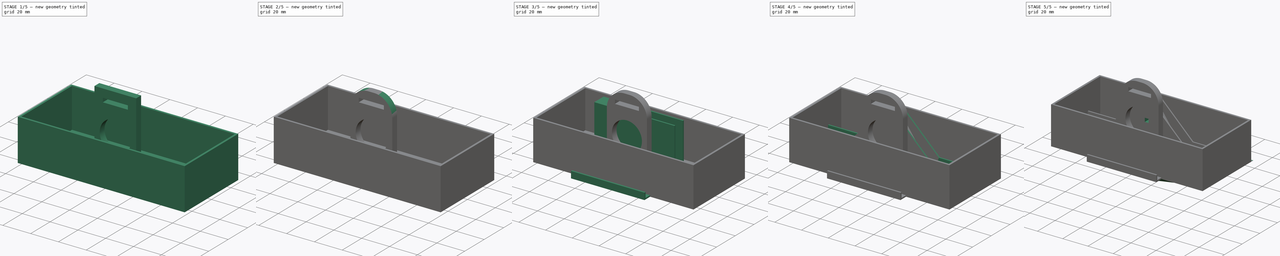
[diagram: build sequence overview — one tinted view per stage of 5, left to right]
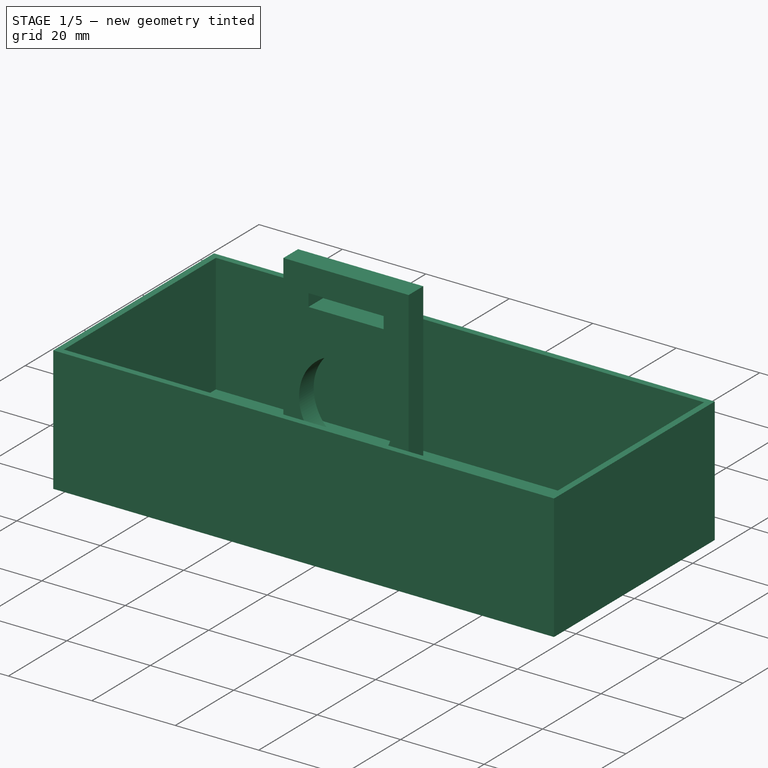
[diagram: stage 1 of 5 — iso view after this stage's code; geometry added in this stage tinted green]
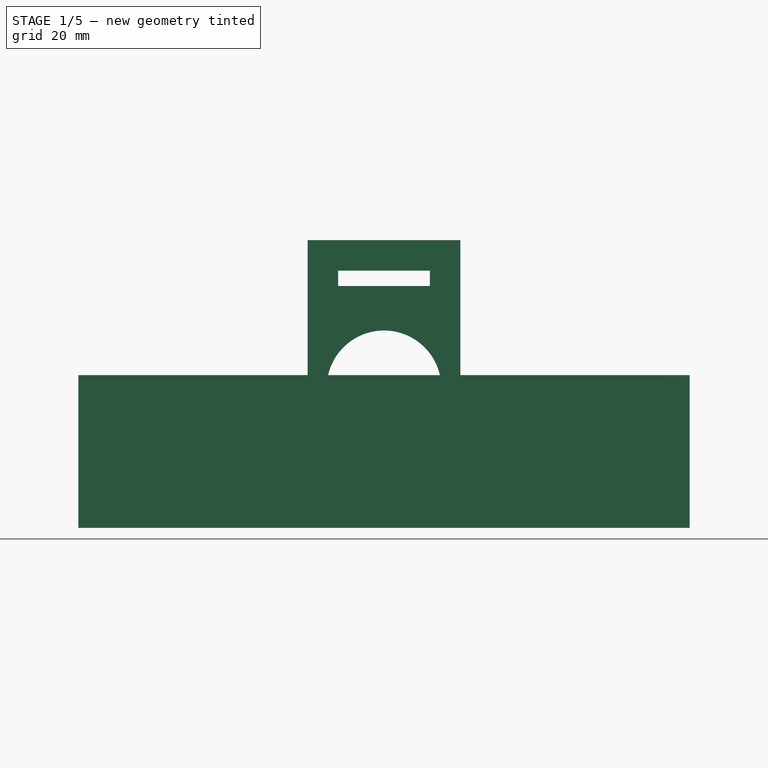
[diagram: stage 1 of 5 — front view after this stage's code; geometry added in this stage tinted green]
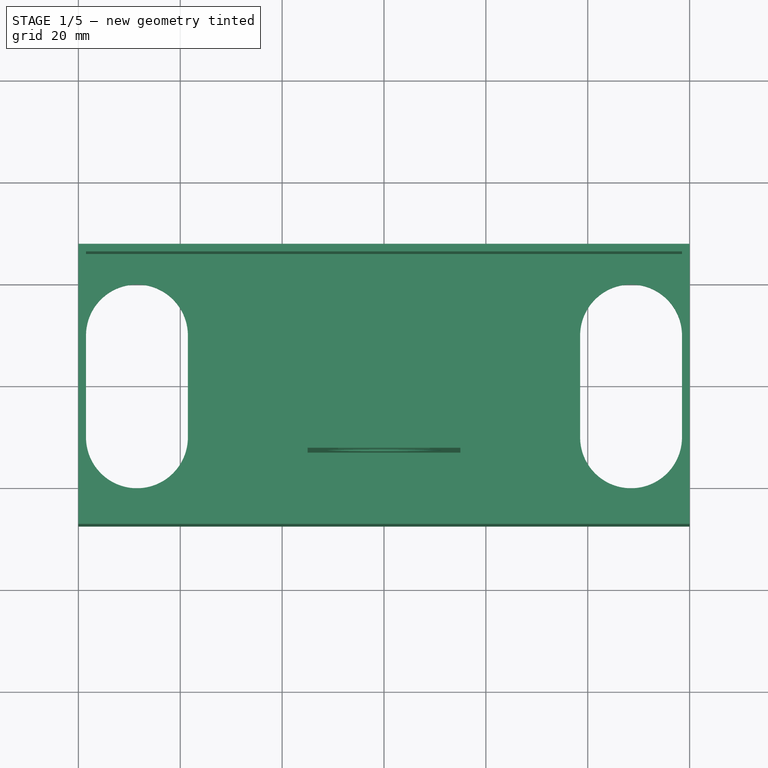
[diagram: stage 1 of 5 — top view after this stage's code; geometry added in this stage tinted green]
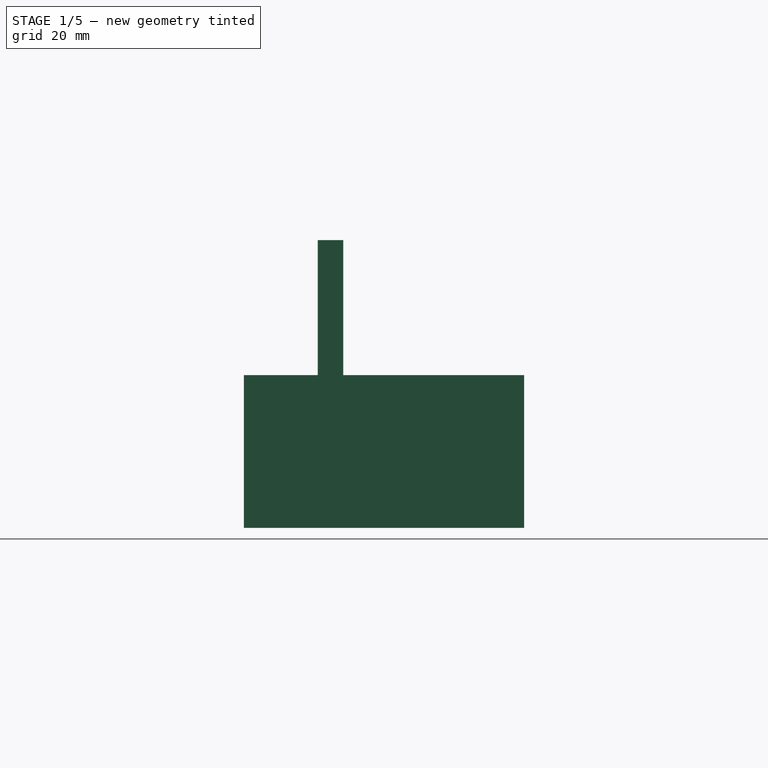
[diagram: stage 1 of 5 — right view after this stage's code; geometry added in this stage tinted green]
FCSTD DOCUMENT  (FreeCAD 0.19R24291 (Git))
Label: rain-o-meter
License: Creative Commons Attribution
LicenseURL: http://creativecommons.org/licenses/by/4.0/
objects: Sketcher::SketchObject×31, PartDesign::Pocket×13, PartDesign::Pad×10, PartDesign::SubtractiveLoft×3, PartDesign::Body×3, PartDesign::Plane×1, PartDesign::AdditiveLoft×1, PartDesign::Fillet×1
note: 91 computed .brp shape members not serialized (recipe doc carries the construction recipe); baked Part::Feature solids carry a one-line shape summary decoded from their .brp

FEATURE [PartDesign::Body] Body001  label="Deckel"
  Group = -> [Sketch005,DatumPlane,Sketch006,AdditiveLoft,Sketch007,Sketch008,SubtractiveLoft]
  Origin = -> Origin001
  Placement = pos=(0,0,23) rot=(0,0,1;0rad)
  Tip = -> SubtractiveLoft
FEATURE [Sketcher::SketchObject] Sketch009
  FullyConstrained = true
  MapMode = 5
  Support = -> [XY_Plane002]
  sketch-geometry (4):
    g0: LineSegment StartX=-60 StartY=27.5 StartZ=0 EndX=60 EndY=27.5 EndZ=0
    g1: LineSegment StartX=60 StartY=27.5 StartZ=0 EndX=60 EndY=-27.5 EndZ=0
    g2: LineSegment StartX=60 StartY=-27.5 StartZ=0 EndX=-60 EndY=-27.5 EndZ=0
    g3: LineSegment StartX=-60 StartY=-27.5 StartZ=0 EndX=-60 EndY=27.5 EndZ=0
  constraints (10):
    c: Coincident(g0,g1)
    c: Coincident(g1,g2)
    c: Coincident(g2,g3)
    c: Coincident(g3,g0)
    c: Horizontal(g0)
    c: Vertical(g1)
    c: Symmetric(g2,g1,g-2)
    c: Symmetric(g2,g0,g-1)
    c: Distance(g0) = 120
    c: Distance(g3) = 55
FEATURE [PartDesign::Pad] Pad004
  Direction = (1,1,1)
  Length = 30
  Length2 = 100
  Profile = -> Sketch009
  Type = 0
FEATURE [Sketcher::SketchObject] Sketch010
  ExternalGeometry = -> [Pad004]
  FullyConstrained = true
  MapMode = 5
  Placement = pos=(0,0,30) rot=(0,0,1;0rad)
  Support = -> [Pad004]
  sketch-geometry (4):
    g0: LineSegment StartX=-58.5 StartY=26 StartZ=0 EndX=58.5 EndY=26 EndZ=0
    g1: LineSegment StartX=58.5 StartY=26 StartZ=0 EndX=58.5 EndY=-26 EndZ=0
    g2: LineSegment StartX=58.5 StartY=-26 StartZ=0 EndX=-58.5 EndY=-26 EndZ=0
    g3: LineSegment StartX=-58.5 StartY=-26 StartZ=0 EndX=-58.5 EndY=26 EndZ=0
  constraints (12):
    c: Coincident(g0,g1)
    c: Coincident(g1,g2)
    c: Coincident(g2,g3)
    c: Coincident(g3,g0)
    c: Horizontal(g0)
    c: Horizontal(g2)
    c: Vertical(g1)
    c: Vertical(g3)
    c: DistanceX(g-3,g0) = 1.5
    c: DistanceY(g0,g-3) = 1.5
    c: DistanceY(g-4,g1) = 1.5
    c: DistanceX(g1,g-4) = 1.5
FEATURE [PartDesign::Pocket] Pocket001
  BaseFeature = -> Pad004
  Length = 5
  Length2 = 100
  Offset = -1.5
  Profile = -> Sketch010
  Type = 2
FEATURE [Sketcher::SketchObject] Sketch011
  ExternalGeometry = -> [Pocket001]
  FullyConstrained = true
  MapMode = 5
  Placement = pos=(0,0,1.5) rot=(0,0,1;0rad)
  Support = -> [Pocket001]
  sketch-geometry (8):
    g0: ArcOfCircle CenterX=-48.5 CenterY=10 CenterZ=0 NormalX=0 NormalY=0 NormalZ=1 AngleXU=0 Radius=10 StartAngle=0 EndAngle=3.14159
    g1: ArcOfCircle CenterX=-48.5 CenterY=-10 CenterZ=0 NormalX=0 NormalY=0 NormalZ=1 AngleXU=0 Radius=10 StartAngle=3.14159 EndAngle=6.28319
    g2: LineSegment StartX=-58.5 StartY=10 StartZ=0 EndX=-58.5 EndY=-10 EndZ=0
    g3: LineSegment StartX=-38.5 StartY=10 StartZ=0 EndX=-38.5 EndY=-10 EndZ=0
    g4: ArcOfCircle CenterX=48.5 CenterY=10 CenterZ=0 NormalX=0 NormalY=0 NormalZ=1 AngleXU=0 Radius=10 StartAngle=1e-16 EndAngle=3.14159
    g5: ArcOfCircle CenterX=48.5 CenterY=-10 CenterZ=0 NormalX=0 NormalY=0 NormalZ=1 AngleXU=0 Radius=10 StartAngle=3.14159 EndAngle=6.28319
    g6: LineSegment StartX=38.5 StartY=10 StartZ=0 EndX=38.5 EndY=-10 EndZ=0
    g7: LineSegment StartX=58.5 StartY=10 StartZ=0 EndX=58.5 EndY=-10 EndZ=0
  constraints (18):
    c: Tangent(g0,g3) = 1.5708
    c: Tangent(g0,g2) = -1.5708
    c: Tangent(g2,g1) = -1.5708
    c: Tangent(g3,g1) = 1.5708
    c: Vertical(g2)
    c: PointOnObject(g0,g-3)
    c: Symmetric(g1,g0,g-1)
    c: DistanceX(g1,g1) = 20
    c: DistanceY(g1,g0) = 20
    c: Tangent(g4,g7) = 1.5708
    c: Tangent(g4,g6) = -1.5708
    c: Tangent(g6,g5) = -1.5708
    c: Tangent(g7,g5) = 1.5708
    c: Equal(g4,g5)
    c: PointOnObject(g4,g-4)
    c: Symmetric(g4,g5,g-1)
    c: Distance(g4,g5) = 20
    c: Distance(g4,g4) = 20
FEATURE [PartDesign::Pocket] Pocket002
  BaseFeature = -> Pocket001
  Length = 5
  Length2 = 100
  Profile = -> Sketch011
  Type = 0
FEATURE [Sketcher::SketchObject] Sketch012
  FullyConstrained = true
  MapMode = 5
  Placement = pos=(0,0,1.5) rot=(0,0,1;0rad)
  Support = -> [Pocket002]
  sketch-geometry (4):
    g0: LineSegment StartX=-15 StartY=-8 StartZ=0 EndX=15 EndY=-8 EndZ=0
    g1: LineSegment StartX=15 StartY=-8 StartZ=0 EndX=15 EndY=-13 EndZ=0
    g2: LineSegment StartX=15 StartY=-13 StartZ=0 EndX=-15 EndY=-13 EndZ=0
    g3: LineSegment StartX=-15 StartY=-13 StartZ=0 EndX=-15 EndY=-8 EndZ=0
  constraints (11):
    c: Coincident(g0,g1)
    c: Coincident(g1,g2)
    c: Coincident(g2,g3)
    c: Coincident(g3,g0)
    c: Horizontal(g0)
    c: Vertical(g1)
    c: Vertical(g3)
    c: Symmetric(g2,g1,g-2)
    c: Distance(g3) = 5
    c: Distance(g2) = 30
    c: DistanceY(g0,g-1) = 8
FEATURE [PartDesign::Pad] Pad005  label="Halter"
  BaseFeature = -> Pocket002
  Direction = (1,1,1)
  Length = 55
  Length2 = 100
  Profile = -> Sketch012
  Type = 0
FEATURE [Sketcher::SketchObject] Sketch013
  FullyConstrained = false
  MapMode = 5
  Placement = pos=(0,-13,0) rot=(1,0,0;1.5708rad)
  sketch-geometry (1):
    g0: Circle CenterX=0 CenterY=27.5 CenterZ=0 NormalX=0 NormalY=0 NormalZ=1 AngleXU=0 Radius=11.25
  constraints (2):
    c: PointOnObject(g0,g-2)
    c: Diameter(g0) = 22.5
FEATURE [PartDesign::Pocket] Pocket003  label="Loch fuer Kugellager"
  BaseFeature = -> Pad005
  Length = 5
  Length2 = 100
  Profile = -> Sketch013
  Type = 0
FEATURE [PartDesign::Body] Body  label="Wippe"
  Group = -> [Sketch,Pad,Sketch014,Sketch015,SubtractiveLoft001,Sketch016,Sketch017,SubtractiveLoft002,Sketch018,Pocket,Sketch019,Pad006,Sketch020,Pocket004,Sketch021,Pocket005,Sketch022,Pad007,Sketch023,Pad008,Sketch024,Pocket006,Sketch025,Pocket007]
  Origin = -> Origin
  Tip = -> Pocket007
FEATURE [Sketcher::SketchObject] Sketch026
  ExternalGeometry = -> [Pocket003]
  FullyConstrained = true
  MapMode = 5
  Placement = pos=(0,-13,0) rot=(1,0,0;1.5708rad)
  Support = -> [Pocket003]
  sketch-geometry (4):
    g0: LineSegment StartX=-9 StartY=50.5 StartZ=0 EndX=9 EndY=50.5 EndZ=0
    g1: LineSegment StartX=9 StartY=50.5 StartZ=0 EndX=9 EndY=47.5 EndZ=0
    g2: LineSegment StartX=9 StartY=47.5 StartZ=0 EndX=-9 EndY=47.5 EndZ=0
    g3: LineSegment StartX=-9 StartY=47.5 StartZ=0 EndX=-9 EndY=50.5 EndZ=0
  constraints (11):
    c: Coincident(g0,g1)
    c: Coincident(g1,g2)
    c: Coincident(g2,g3)
    c: Coincident(g3,g0)
    c: Horizontal(g2)
    c: Vertical(g1)
    c: Vertical(g3)
    c: Distance(g0) = 18
    c: Distance(g3) = 3
    c: Symmetric(g0,g0,g-2)
    c: DistanceY(g-3,g1) = 20
FEATURE [PartDesign::Pocket] Pocket008
  BaseFeature = -> Pocket003
  Length = 5
  Length2 = 100
  Profile = -> Sketch026
  Type = 0
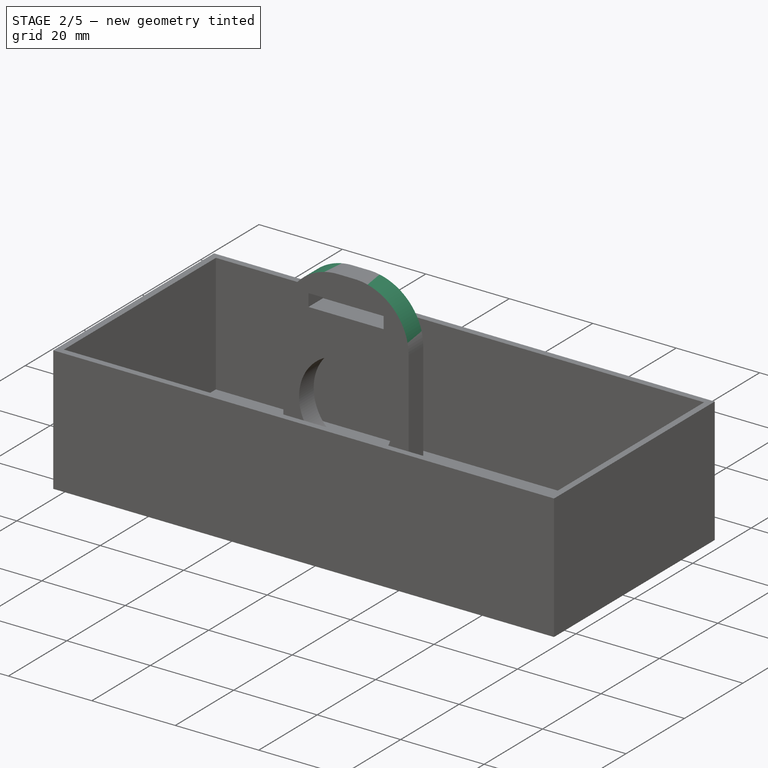
[diagram: stage 2 of 5 — iso view after this stage's code; geometry added in this stage tinted green]
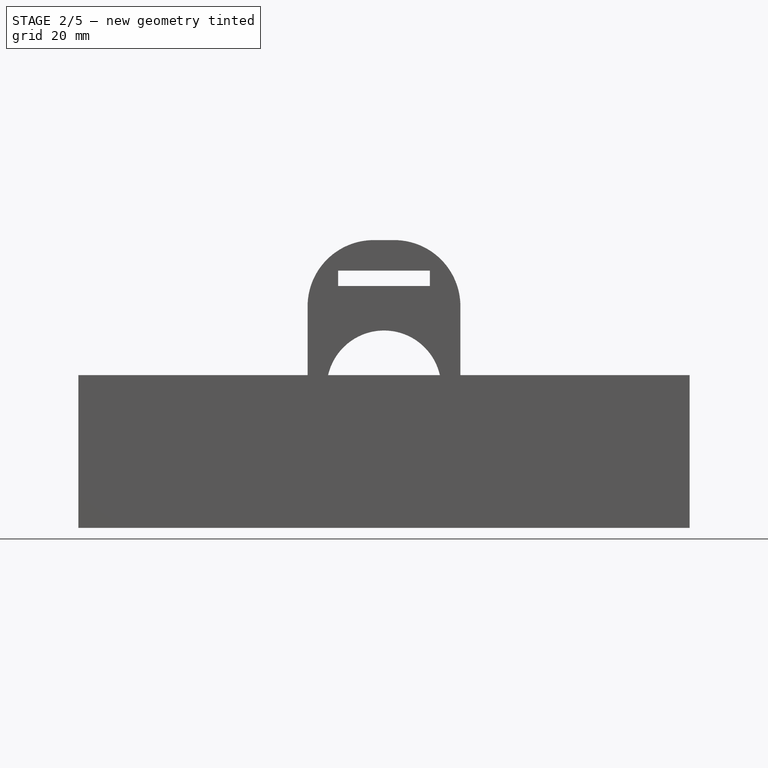
[diagram: stage 2 of 5 — front view after this stage's code; geometry added in this stage tinted green]
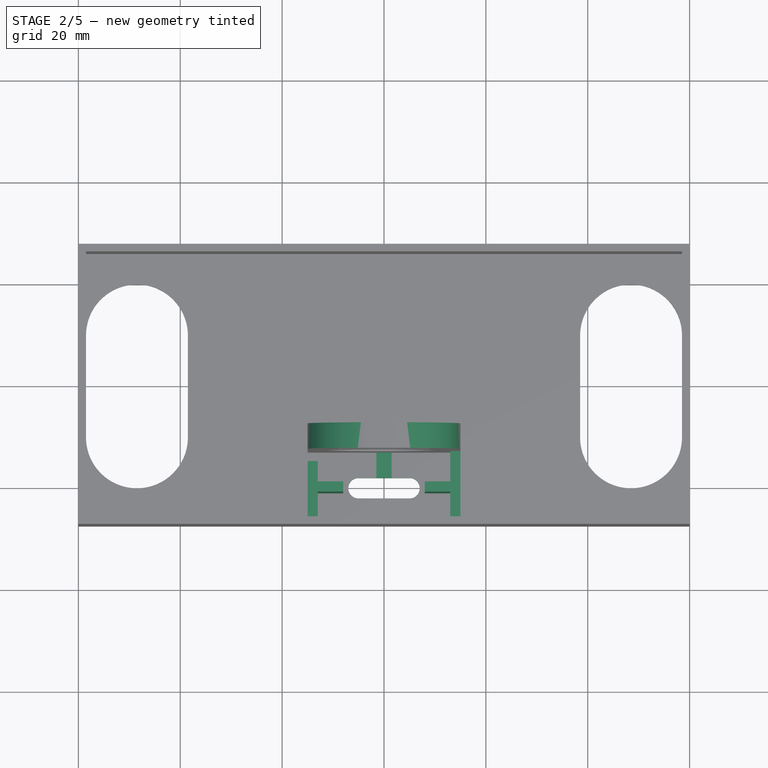
[diagram: stage 2 of 5 — top view after this stage's code; geometry added in this stage tinted green]
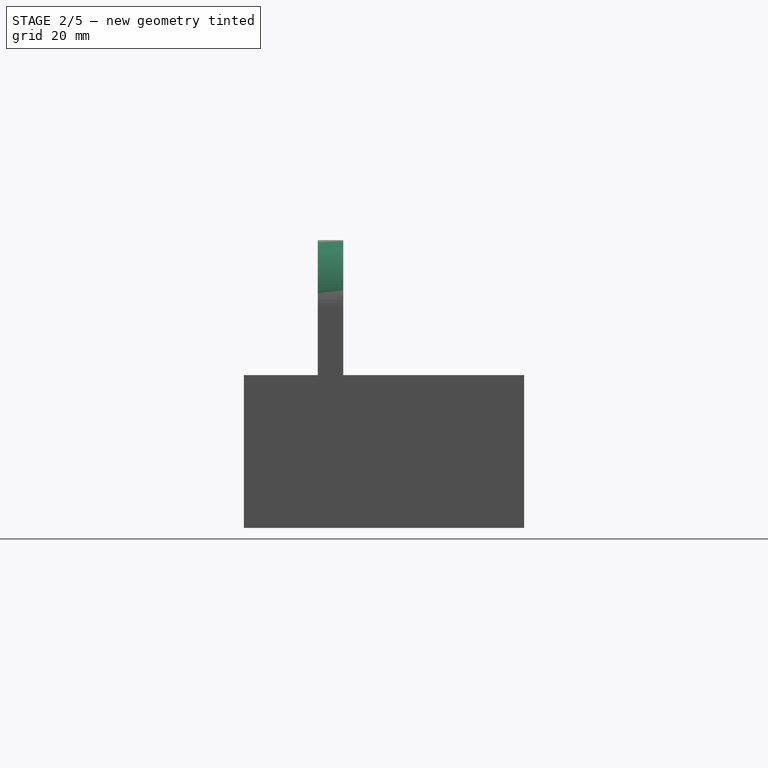
[diagram: stage 2 of 5 — right view after this stage's code; geometry added in this stage tinted green]
FEATURE [PartDesign::Fillet] Fillet
  Base = -> Pocket008 [Edge64,Edge72]
  BaseFeature = -> Pocket008
  Radius = 13
  SupportTransform = false
FEATURE [Sketcher::SketchObject] Sketch027
  ExternalGeometry = -> [Fillet]
  FullyConstrained = true
  MapMode = 5
  Placement = pos=(0,0,1.5) rot=(0,0,1;0rad)
  Support = -> [Fillet]
  sketch-geometry (16):
    g0: LineSegment StartX=-13 StartY=-15 StartZ=0 EndX=-13 EndY=-19 EndZ=0
    g1: LineSegment StartX=-15 StartY=-26 StartZ=0 EndX=-15 EndY=-15 EndZ=0
    g2: LineSegment StartX=-13 StartY=-19 StartZ=0 EndX=-8 EndY=-19 EndZ=0
    g3: LineSegment StartX=-8 StartY=-19 StartZ=0 EndX=-8 EndY=-21 EndZ=0
    g4: LineSegment StartX=-8 StartY=-21 StartZ=0 EndX=-13 EndY=-21 EndZ=0
    g5: LineSegment StartX=15 StartY=-13 StartZ=0 EndX=15 EndY=-26 EndZ=0
    g6: LineSegment StartX=8 StartY=-21 StartZ=0 EndX=8 EndY=-19 EndZ=0
    g7: LineSegment StartX=8 StartY=-19 StartZ=0 EndX=13 EndY=-19 EndZ=0
    g8: LineSegment StartX=13 StartY=-19 StartZ=0 EndX=13 EndY=-13 EndZ=0
    g9: LineSegment StartX=13 StartY=-13 StartZ=0 EndX=15 EndY=-13 EndZ=0
    g10: LineSegment StartX=-13 StartY=-21 StartZ=0 EndX=-13 EndY=-26 EndZ=0
    g11: LineSegment StartX=-13 StartY=-26 StartZ=0 EndX=-15 EndY=-26 EndZ=0
    g12: LineSegment StartX=8 StartY=-21 StartZ=0 EndX=13 EndY=-21 EndZ=0
    g13: LineSegment StartX=13 StartY=-21 StartZ=0 EndX=13 EndY=-26 EndZ=0
    g14: LineSegment StartX=13 StartY=-26 StartZ=0 EndX=15 EndY=-26 EndZ=0
    g15: LineSegment StartX=-15 StartY=-15 StartZ=0 EndX=-13 EndY=-15 EndZ=0
  constraints (47):
    c: Vertical(g0)
    c: Vertical(g1)
    c: Vertical(g0,g4)
    c: Coincident(g0,g2)
    c: Horizontal(g2)
    c: Coincident(g2,g3)
    c: Vertical(g3)
    c: Coincident(g3,g4)
    c: Horizontal(g4)
    c: Distance(g2) = 5
    c: Coincident(g-3,g5)
    c: Vertical(g5)
    c: Vertical(g6)
    c: Coincident(g6,g7)
    c: Horizontal(g7)
    c: PointOnObject(g8,g-3)
    c: Vertical(g8)
    c: Coincident(g8,g9)
    c: Coincident(g9,g5)
    c: Distance(g8) = 6
    c: Distance(g9) = 2
    c: Distance(g7) = 5
    c: PointOnObject(g1,g-4)
    c: Coincident(g4,g10)
    c: PointOnObject(g10,g-4)
    c: Vertical(g10)
    c: Coincident(g10,g11)
    c: Coincident(g11,g1)
    c: Distance(g11) = 2
    c: Distance(g3) = 2
    c: Coincident(g6,g12)
    c: Horizontal(g12)
    c: Coincident(g12,g13)
    c: PointOnObject(g13,g-4)
    c: Vertical(g13)
    c: Coincident(g13,g14)
    c: PointOnObject(g14,g-4)
    c: Coincident(g5,g14)
    c: Distance(g6) = 2
    c: Distance(g14) = 2
    c: Horizontal(g2,g6)
    c: Vertical(g1,g-3)
    c: Coincident(g15,g1)
    c: Coincident(g15,g0)
    c: Horizontal(g15)
    c: DistanceY(g1,g-3) = 2
    c: Coincident(g8,g7)
FEATURE [PartDesign::Pad] Pad009  label="Platinenklammer"
  BaseFeature = -> Fillet
  Direction = (1,1,1)
  Length = 20
  Length2 = 100
  Profile = -> Sketch027
  Type = 0
FEATURE [Sketcher::SketchObject] Sketch028
  ExternalGeometry = -> [Pad009]
  FullyConstrained = true
  MapMode = 5
  Placement = pos=(0,0,1.5) rot=(0,0,1;0rad)
  Support = -> [Pad009]
  sketch-geometry (4):
    g0: LineSegment StartX=-1.5 StartY=-13 StartZ=0 EndX=1.5 EndY=-13 EndZ=0
    g1: LineSegment StartX=1.5 StartY=-13 StartZ=0 EndX=1.5 EndY=-18 EndZ=0
    g2: LineSegment StartX=1.5 StartY=-18 StartZ=0 EndX=-1.5 EndY=-18 EndZ=0
    g3: LineSegment StartX=-1.5 StartY=-18 StartZ=0 EndX=-1.5 EndY=-13 EndZ=0
  constraints (11):
    c: Coincident(g0,g1)
    c: Coincident(g1,g2)
    c: Coincident(g2,g3)
    c: Coincident(g3,g0)
    c: Horizontal(g0)
    c: Vertical(g1)
    c: Vertical(g3)
    c: PointOnObject(g0,g-3)
    c: Distance(g1) = 5
    c: Symmetric(g2,g1,g-2)
    c: Distance(g0) = 3
FEATURE [PartDesign::Pad] Pad010  label="Platinenpodest"
  BaseFeature = -> Pad009
  Direction = (1,1,1)
  Length = 2
  Length2 = 100
  Profile = -> Sketch028
  Type = 0
FEATURE [Sketcher::SketchObject] Sketch029
  ExternalGeometry = -> [Pad010]
  FullyConstrained = true
  MapMode = 5
  Placement = pos=(-13,0,0) rot=(0.57735,0.57735,0.57735;2.0944rad)
  Support = -> [Pad010]
  sketch-geometry (4):
    g0: ArcOfCircle CenterX=-4.75 CenterY=5.5 CenterZ=0 NormalX=0 NormalY=0 NormalZ=1 AngleXU=0 Radius=1.5 StartAngle=1.5708 EndAngle=4.71239
    g1: ArcOfCircle CenterX=4.75 CenterY=5.5 CenterZ=0 NormalX=0 NormalY=0 NormalZ=1 AngleXU=0 Radius=1.5 StartAngle=4.71239 EndAngle=7.85398
    g2: LineSegment StartX=-4.75 StartY=4 StartZ=0 EndX=4.75 EndY=4 EndZ=0
    g3: LineSegment StartX=-4.75 StartY=7 StartZ=0 EndX=4.75 EndY=7 EndZ=0
  constraints (9):
    c: Tangent(g0,g3) = 1.5708
    c: Tangent(g0,g2) = -1.5708
    c: Tangent(g2,g1) = -1.5708
    c: Tangent(g3,g1) = 1.5708
    c: Horizontal(g2)
    c: Symmetric(g1,g0,g-2)
    c: DistanceY(g1,g1) = 3
    c: Distance(g3) = 9.5
    c: DistanceY(g-3,g1) = 4
FEATURE [PartDesign::Pocket] Pocket009
  BaseFeature = -> Pad010
  Length = 5
  Length2 = 100
  Profile = -> Sketch029
  Type = 0
FEATURE [Sketcher::SketchObject] Sketch030
  ExternalGeometry = -> [Pocket009]
  FullyConstrained = true
  MapMode = 5
  Placement = pos=(0,0,1.5) rot=(0,0,1;0rad)
  Support = -> [Pocket009]
  sketch-geometry (4):
    g0: ArcOfCircle CenterX=-5 CenterY=-20 CenterZ=0 NormalX=0 NormalY=0 NormalZ=1 AngleXU=0 Radius=2 StartAngle=1.5708 EndAngle=4.71239
    g1: ArcOfCircle CenterX=5 CenterY=-20 CenterZ=0 NormalX=0 NormalY=0 NormalZ=1 AngleXU=0 Radius=2 StartAngle=4.71239 EndAngle=7.85398
    g2: LineSegment StartX=-5 StartY=-22 StartZ=0 EndX=5 EndY=-22 EndZ=0
    g3: LineSegment StartX=-5 StartY=-18 StartZ=0 EndX=5 EndY=-18 EndZ=0
  constraints (9):
    c: Tangent(g0,g3) = 1.5708
    c: Tangent(g0,g2) = -1.5708
    c: Tangent(g2,g1) = -1.5708
    c: Tangent(g3,g1) = 1.5708
    c: Equal(g0,g1)
    c: PointOnObject(g-3,g3)
    c: Symmetric(g0,g1,g-2)
    c: Distance(g2) = 10
    c: DistanceY(g1,g1) = 4
FEATURE [PartDesign::Pocket] Pocket010
  BaseFeature = -> Pocket009
  Length = 5
  Length2 = 100
  Profile = -> Sketch030
  Type = 0
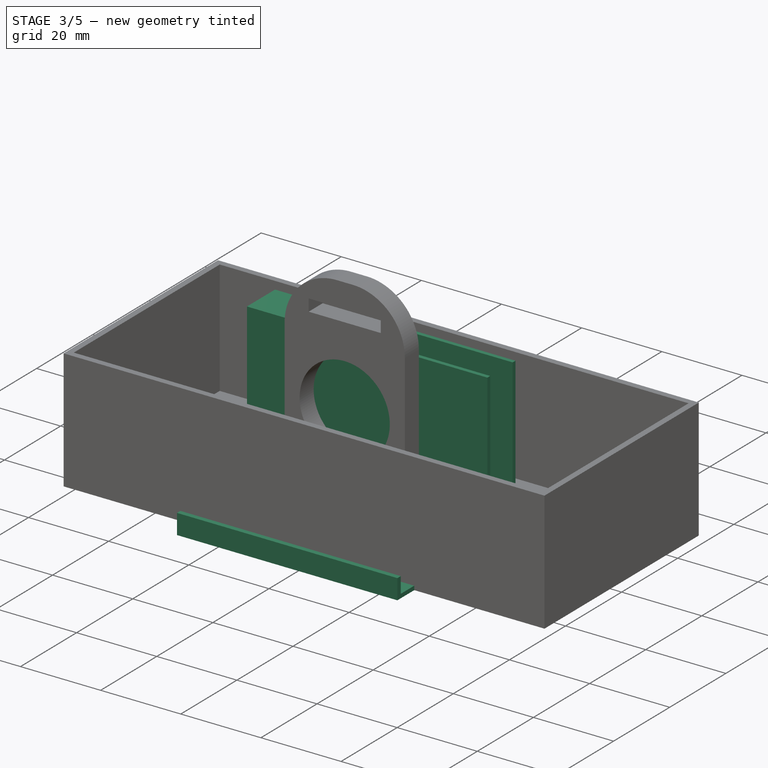
[diagram: stage 3 of 5 — iso view after this stage's code; geometry added in this stage tinted green]
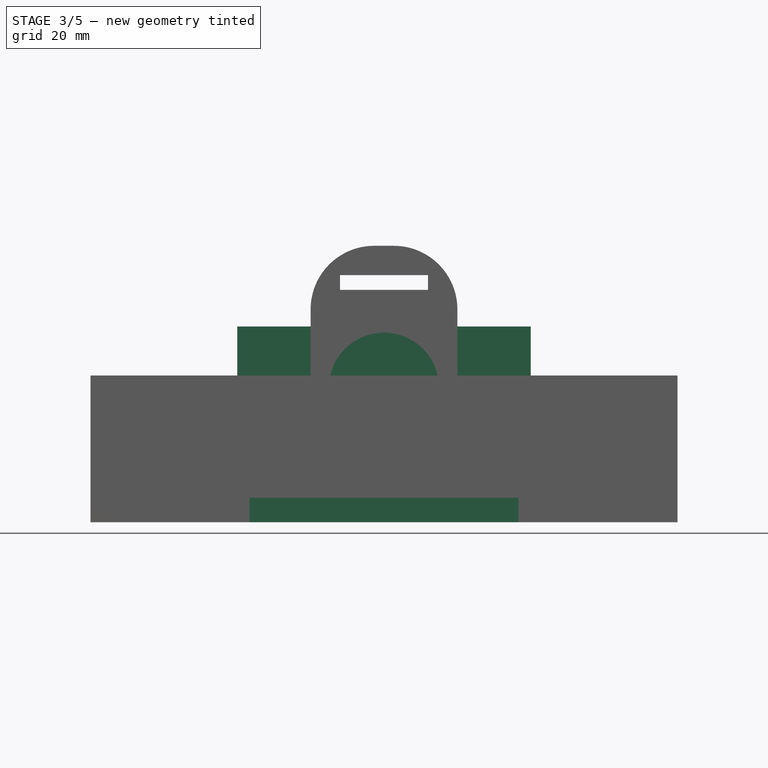
[diagram: stage 3 of 5 — front view after this stage's code; geometry added in this stage tinted green]
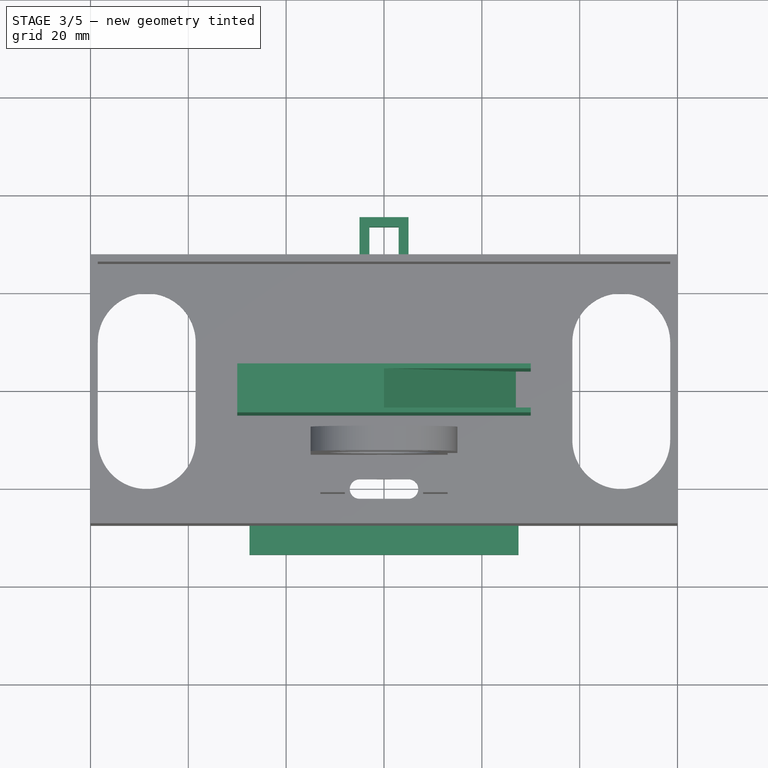
[diagram: stage 3 of 5 — top view after this stage's code; geometry added in this stage tinted green]
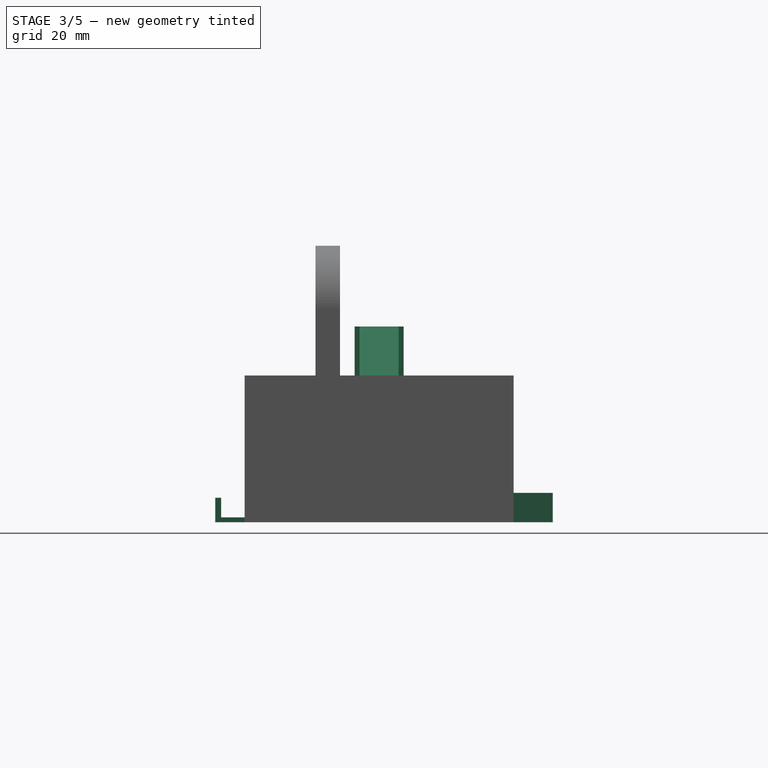
[diagram: stage 3 of 5 — right view after this stage's code; geometry added in this stage tinted green]
FEATURE [Sketcher::SketchObject] Sketch
  FullyConstrained = true
  MapMode = 5
  Support = -> [XY_Plane]
  sketch-geometry (4):
    g0: LineSegment StartX=-30 StartY=5 StartZ=0 EndX=30 EndY=5 EndZ=0
    g1: LineSegment StartX=30 StartY=5 StartZ=0 EndX=30 EndY=-5 EndZ=0
    g2: LineSegment StartX=30 StartY=-5 StartZ=0 EndX=-30 EndY=-5 EndZ=0
    g3: LineSegment StartX=-30 StartY=-5 StartZ=0 EndX=-30 EndY=5 EndZ=0
  constraints (10):
    c: Coincident(g0,g1)
    c: Coincident(g1,g2)
    c: Coincident(g2,g3)
    c: Coincident(g3,g0)
    c: Horizontal(g2)
    c: Vertical(g1)
    c: Distance(g0) = 60
    c: Distance(g3) = 10
    c: Symmetric(g0,g0,g-2)
    c: Symmetric(g0,g2,g-1)
FEATURE [PartDesign::Pad] Pad
  Direction = (1,1,1)
  Length = 40
  Length2 = 100
  Profile = -> Sketch
  Type = 0
FEATURE [Sketcher::SketchObject] Sketch014
  ExternalGeometry = -> [Pad]
  FullyConstrained = true
  MapMode = 5
  Placement = pos=(0,0,40) rot=(0,0,1;0rad)
  Support = -> [Pad]
  sketch-geometry (4):
    g0: LineSegment StartX=0 StartY=4 StartZ=0 EndX=30 EndY=4 EndZ=0
    g1: LineSegment StartX=30 StartY=4 StartZ=0 EndX=30 EndY=-4 EndZ=0
    g2: LineSegment StartX=30 StartY=-4 StartZ=0 EndX=0 EndY=-4 EndZ=0
    g3: LineSegment StartX=0 StartY=-4 StartZ=0 EndX=0 EndY=4 EndZ=0
  constraints (12):
    c: Coincident(g0,g1)
    c: Coincident(g1,g2)
    c: Coincident(g2,g3)
    c: Coincident(g3,g0)
    c: Horizontal(g0)
    c: Vertical(g1)
    c: Vertical(g3)
    c: PointOnObject(g2,g-2)
    c: Horizontal(g2)
    c: PointOnObject(g0,g-3)
    c: DistanceY(g0,g-3) = 1
    c: DistanceY(g-3,g1) = 1
FEATURE [Sketcher::SketchObject] Sketch015
  ExternalGeometry = -> [Pad]
  FullyConstrained = true
  MapMode = 5
  Placement = pos=(0,0,0) rot=(1,0,0;3.14159rad)
  Support = -> [Pad]
  sketch-geometry (4):
    g0: LineSegment StartX=30 StartY=4 StartZ=0 EndX=28 EndY=4 EndZ=0
    g1: LineSegment StartX=28 StartY=4 StartZ=0 EndX=28 EndY=-4 EndZ=0
    g2: LineSegment StartX=28 StartY=-4 StartZ=0 EndX=30 EndY=-4 EndZ=0
    g3: LineSegment StartX=30 StartY=-4 StartZ=0 EndX=30 EndY=4 EndZ=0
  constraints (12):
    c: Coincident(g0,g1)
    c: Coincident(g1,g2)
    c: Coincident(g2,g3)
    c: Coincident(g3,g0)
    c: Horizontal(g0)
    c: Horizontal(g2)
    c: Vertical(g1)
    c: Vertical(g3)
    c: Distance(g2) = 2
    c: DistanceY(g0,g-3) = 1
    c: DistanceY(g-3,g1) = 1
    c: Vertical(g0,g-3)
FEATURE [PartDesign::SubtractiveLoft] SubtractiveLoft001  label="Rutsche01"
  BaseFeature = -> Pad
  Closed = false
  Profile = -> Sketch014
  Ruled = false
  Sections = -> [Sketch015]
FEATURE [Sketcher::SketchObject] Sketch031
  ExternalGeometry = -> [Pocket010]
  FullyConstrained = true
  MapMode = 5
  Placement = pos=(0,-27.5,0) rot=(1,0,0;1.5708rad)
  Support = -> [Pocket010]
  sketch-geometry (4):
    g0: LineSegment StartX=-27.5 StartY=5 StartZ=0 EndX=27.5 EndY=5 EndZ=0
    g1: LineSegment StartX=27.5 StartY=5 StartZ=0 EndX=27.5 EndY=0 EndZ=0
    g2: LineSegment StartX=27.5 StartY=0 StartZ=0 EndX=-27.5 EndY=0 EndZ=0
    g3: LineSegment StartX=-27.5 StartY=0 StartZ=0 EndX=-27.5 EndY=5 EndZ=0
  constraints (11):
    c: Coincident(g0,g1)
    c: Coincident(g1,g2)
    c: Coincident(g2,g3)
    c: Coincident(g3,g0)
    c: Horizontal(g2)
    c: Vertical(g1)
    c: Vertical(g3)
    c: Distance(g0) = 55
    c: PointOnObject(g2,g-3)
    c: Symmetric(g0,g0,g-2)
    c: Distance(g3) = 5
FEATURE [PartDesign::Pad] Pad011
  BaseFeature = -> Pocket010
  Direction = (1,1,1)
  Length = 6
  Length2 = 100
  Profile = -> Sketch031
  Type = 0
FEATURE [Sketcher::SketchObject] Sketch032
  ExternalGeometry = -> [Pad011]
  FullyConstrained = true
  MapMode = 5
  Placement = pos=(0,1.1e-15,5) rot=(0,0,1;0rad)
  Support = -> [Pad011]
  sketch-geometry (4):
    g0: LineSegment StartX=-27.5 StartY=-27.5 StartZ=0 EndX=27.5 EndY=-27.5 EndZ=0
    g1: LineSegment StartX=27.5 StartY=-27.5 StartZ=0 EndX=27.5 EndY=-32.3 EndZ=0
    g2: LineSegment StartX=27.5 StartY=-32.3 StartZ=0 EndX=-27.5 EndY=-32.3 EndZ=0
    g3: LineSegment StartX=-27.5 StartY=-32.3 StartZ=0 EndX=-27.5 EndY=-27.5 EndZ=0
  constraints (10):
    c: Coincident(g0,g1)
    c: Coincident(g1,g2)
    c: Coincident(g2,g3)
    c: Coincident(g3,g0)
    c: Horizontal(g2)
    c: Vertical(g1)
    c: Vertical(g3)
    c: Coincident(g0,g-3)
    c: Coincident(g0,g-3)
    c: Distance(g2,g-4) = 1.2
FEATURE [PartDesign::Pocket] Pocket011
  BaseFeature = -> Pad011
  Length = 5
  Length2 = 100
  Offset = -1
  Profile = -> Sketch032
  Type = 2
FEATURE [Sketcher::SketchObject] Sketch033
  ExternalGeometry = -> [Pocket011]
  FullyConstrained = true
  MapMode = 5
  Placement = pos=(0,27.5,0) rot=(0,0.707107,0.707107;3.14159rad)
  Support = -> [Pocket011]
  sketch-geometry (4):
    g0: LineSegment StartX=-5 StartY=6 StartZ=0 EndX=5 EndY=6 EndZ=0
    g1: LineSegment StartX=5 StartY=6 StartZ=0 EndX=5 EndY=0 EndZ=0
    g2: LineSegment StartX=5 StartY=0 StartZ=0 EndX=-5 EndY=0 EndZ=0
    g3: LineSegment StartX=-5 StartY=0 StartZ=0 EndX=-5 EndY=6 EndZ=0
  constraints (11):
    c: Coincident(g0,g1)
    c: Coincident(g1,g2)
    c: Coincident(g2,g3)
    c: Coincident(g3,g0)
    c: Horizontal(g2)
    c: Vertical(g1)
    c: Vertical(g3)
    c: PointOnObject(g1,g-3)
    c: Distance(g0) = 10
    c: Distance(g1) = 6
    c: Symmetric(g0,g0,g-2)
FEATURE [PartDesign::Pad] Pad012
  BaseFeature = -> Pocket011
  Direction = (1,1,1)
  Length = 8
  Length2 = 100
  Profile = -> Sketch033
  Type = 0
FEATURE [Sketcher::SketchObject] Sketch034
  ExternalGeometry = -> [Pad012]
  FullyConstrained = true
  MapMode = 5
  Placement = pos=(0,0,6.1e-15) rot=(1,0,0;3.14159rad)
  Support = -> [Pad012]
  sketch-geometry (4):
    g0: LineSegment StartX=-3 StartY=-33.5 StartZ=0 EndX=3 EndY=-33.5 EndZ=0
    g1: LineSegment StartX=3 StartY=-33.5 StartZ=0 EndX=3 EndY=-27.5 EndZ=0
    g2: LineSegment StartX=3 StartY=-27.5 StartZ=0 EndX=-3 EndY=-27.5 EndZ=0
    g3: LineSegment StartX=-3 StartY=-27.5 StartZ=0 EndX=-3 EndY=-33.5 EndZ=0
  constraints (13):
    c: Coincident(g0,g1)
    c: Coincident(g1,g2)
    c: Coincident(g2,g3)
    c: Coincident(g3,g0)
    c: Horizontal(g0)
    c: Horizontal(g2)
    c: Vertical(g1)
    c: Vertical(g3)
    c: DistanceX(g-3,g0) = 2
    c: DistanceX(g0,g-4) = 2
    c: Distance(g0) = 6
    c: DistanceY(g-3,g0) = 2
    c: Horizontal(g1,g-4)
FEATURE [PartDesign::Pocket] Pocket012
  BaseFeature = -> Pad012
  Length = 5
  Length2 = 100
  Profile = -> Sketch034
  Type = 1
FEATURE [PartDesign::Body] Body002  label="Bodenplatte"
  Group = -> [Sketch009,Pad004,Sketch010,Pocket001,Sketch011,Pocket002,Sketch012,Pad005,Sketch013,Pocket003,Sketch026,Pocket008,Fillet,Sketch027,Pad009,Sketch028,Pad010,Sketch029,Pocket009,Sketch030,Pocket010,Sketch031,Pad011,Sketch032,Pocket011,Sketch033,Pad012,Sketch034,Pocket012]
  Origin = -> Origin002
  Placement = pos=(0,0,-24) rot=(0,0,1;0rad)
  Tip = -> Pocket012
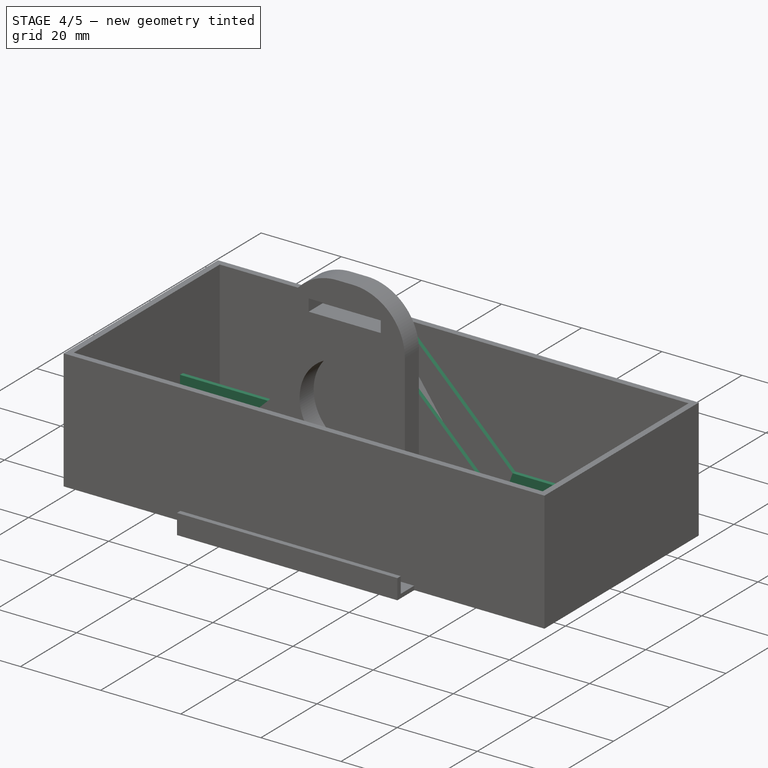
[diagram: stage 4 of 5 — iso view after this stage's code; geometry added in this stage tinted green]
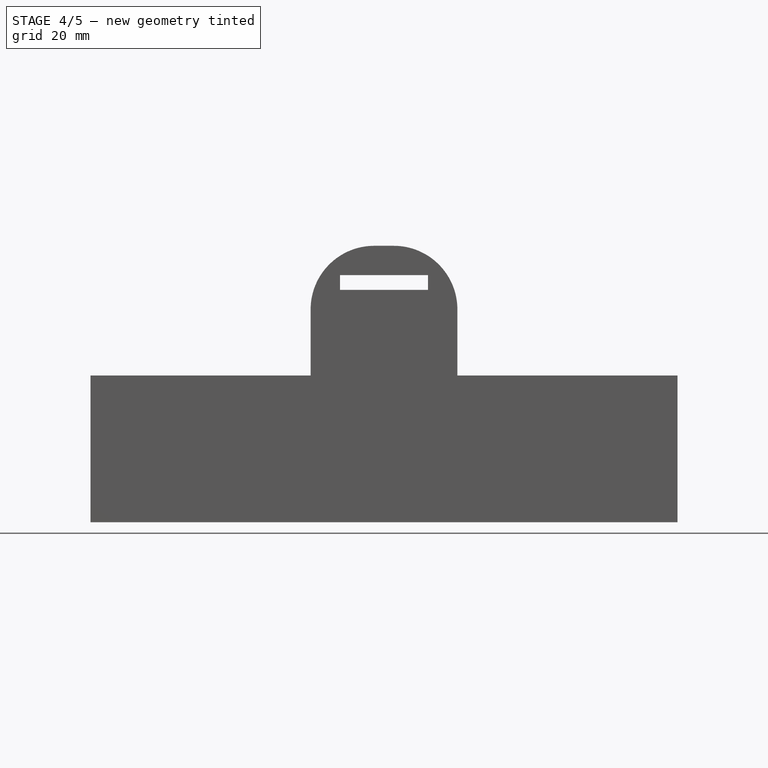
[diagram: stage 4 of 5 — front view after this stage's code; geometry added in this stage tinted green]
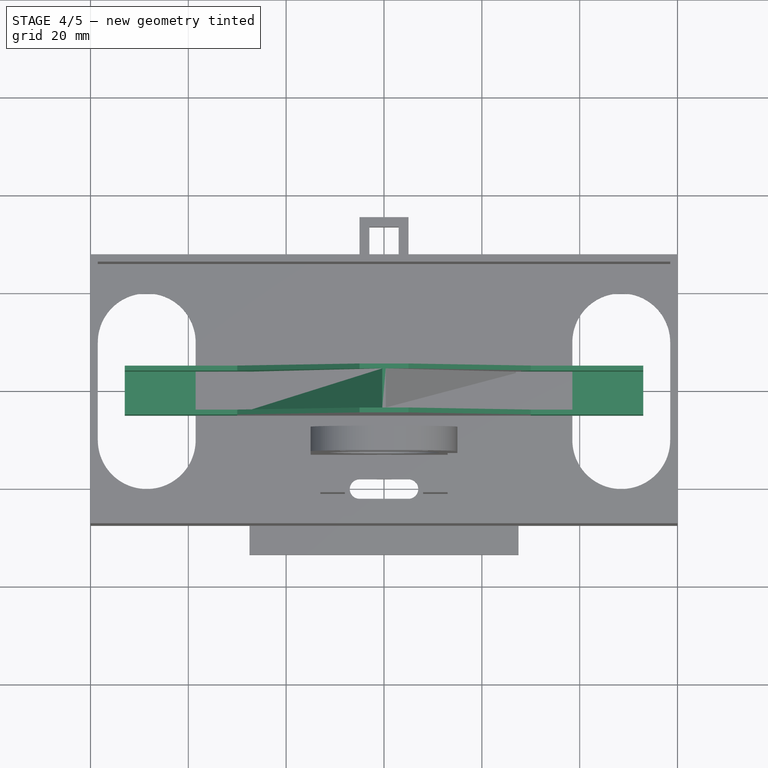
[diagram: stage 4 of 5 — top view after this stage's code; geometry added in this stage tinted green]
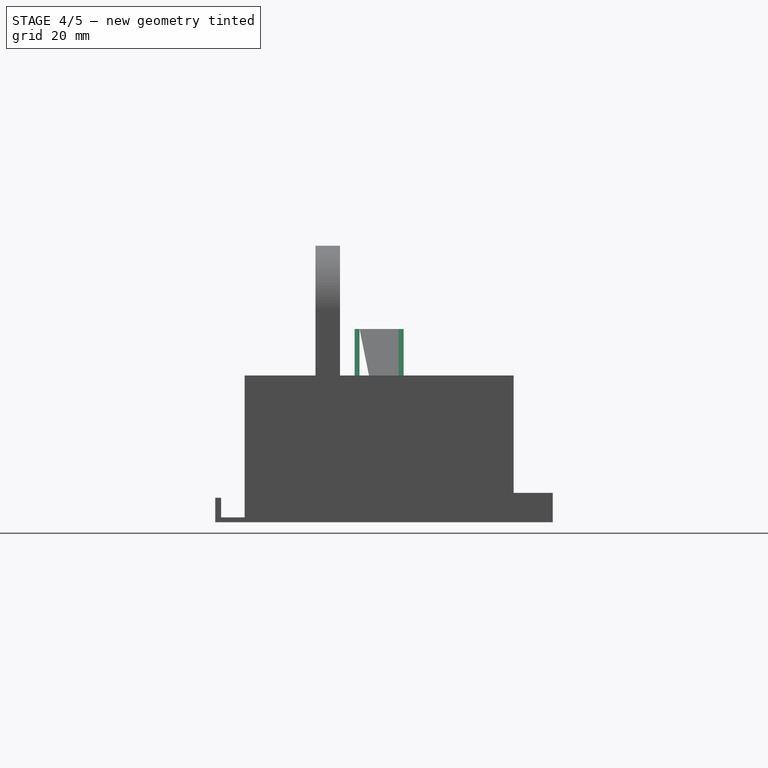
[diagram: stage 4 of 5 — right view after this stage's code; geometry added in this stage tinted green]
FEATURE [Sketcher::SketchObject] Sketch016
  ExternalGeometry = -> [SubtractiveLoft001]
  FullyConstrained = true
  MapMode = 5
  Placement = pos=(0,0,40) rot=(0,0,1;0rad)
  Support = -> [SubtractiveLoft001]
  sketch-geometry (4):
    g0: LineSegment StartX=-30 StartY=4 StartZ=0 EndX=0 EndY=4 EndZ=0
    g1: LineSegment StartX=0 StartY=4 StartZ=0 EndX=0 EndY=-4 EndZ=0
    g2: LineSegment StartX=0 StartY=-4 StartZ=0 EndX=-30 EndY=-4 EndZ=0
    g3: LineSegment StartX=-30 StartY=-4 StartZ=0 EndX=-30 EndY=4 EndZ=0
  constraints (12):
    c: Coincident(g0,g1)
    c: Coincident(g1,g2)
    c: Coincident(g2,g3)
    c: Coincident(g3,g0)
    c: Horizontal(g0)
    c: Horizontal(g2)
    c: Vertical(g1)
    c: Vertical(g3)
    c: PointOnObject(g0,g-3)
    c: PointOnObject(g0,g-2)
    c: DistanceY(g0,g-3) = 1
    c: DistanceY(g-3,g2) = 1
FEATURE [Sketcher::SketchObject] Sketch017
  ExternalGeometry = -> [SubtractiveLoft001]
  FullyConstrained = true
  MapMode = 5
  Placement = pos=(0,0,0) rot=(1,0,0;3.14159rad)
  Support = -> [SubtractiveLoft001]
  sketch-geometry (4):
    g0: LineSegment StartX=-30 StartY=4 StartZ=0 EndX=-28 EndY=4 EndZ=0
    g1: LineSegment StartX=-28 StartY=4 StartZ=0 EndX=-28 EndY=-4 EndZ=0
    g2: LineSegment StartX=-28 StartY=-4 StartZ=0 EndX=-30 EndY=-4 EndZ=0
    g3: LineSegment StartX=-30 StartY=-4 StartZ=0 EndX=-30 EndY=4 EndZ=0
  constraints (12):
    c: Coincident(g0,g1)
    c: Coincident(g1,g2)
    c: Coincident(g2,g3)
    c: Coincident(g3,g0)
    c: Horizontal(g0)
    c: Horizontal(g2)
    c: Vertical(g1)
    c: Vertical(g3)
    c: PointOnObject(g0,g-3)
    c: DistanceX(g2,g2) = 2
    c: DistanceY(g-3,g2) = 1
    c: DistanceY(g0,g-3) = 1
FEATURE [PartDesign::SubtractiveLoft] SubtractiveLoft002  label="Rutsche02"
  BaseFeature = -> SubtractiveLoft001
  Closed = false
  Profile = -> Sketch016
  Ruled = false
  Sections = -> [Sketch017]
FEATURE [Sketcher::SketchObject] Sketch018
  ExternalGeometry = -> [SubtractiveLoft002]
  FullyConstrained = true
  MapMode = 5
  Placement = pos=(0,-5,0) rot=(1,0,0;1.5708rad)
  Support = -> [SubtractiveLoft002]
  sketch-geometry (7):
    g0: LineSegment StartX=0 StartY=40 StartZ=0 EndX=30 EndY=40 EndZ=0
    g1: LineSegment StartX=30 StartY=40 StartZ=0 EndX=30 EndY=15 EndZ=0
    g2: LineSegment StartX=30 StartY=15 StartZ=0 EndX=5 EndY=39.5 EndZ=0
    g3: LineSegment StartX=5 StartY=39.5 StartZ=0 EndX=-5 EndY=39.5 EndZ=0
    g4: LineSegment StartX=-5 StartY=39.5 StartZ=0 EndX=-30 EndY=15 EndZ=0
    g5: LineSegment StartX=-30 StartY=15 StartZ=0 EndX=-30 EndY=40 EndZ=0
    g6: LineSegment StartX=-30 StartY=40 StartZ=0 EndX=0 EndY=40 EndZ=0
  constraints (18):
    c: Coincident(g0,g-4)
    c: Coincident(g0,g1)
    c: Vertical(g1)
    c: Coincident(g1,g2)
    c: Coincident(g2,g3)
    c: Coincident(g3,g4)
    c: Coincident(g4,g5)
    c: Vertical(g5)
    c: Coincident(g5,g6)
    c: Coincident(g6,g0)
    c: Horizontal(g3)
    c: DistanceY(g-3,g4) = 15
    c: DistanceX(g3,g0) = 5
    c: DistanceX(g0,g2) = 5
    c: DistanceY(g-4,g1) = 15
    c: DistanceY(g3,g0) = 0.5
    c: Coincident(g5,g-5)
    c: Coincident(g0,g-5)
FEATURE [PartDesign::Pocket] Pocket  label="Trapez"
  BaseFeature = -> SubtractiveLoft002
  Length = 5
  Length2 = 100
  Profile = -> Sketch018
  Type = 1
FEATURE [Sketcher::SketchObject] Sketch019
  ExternalGeometry = -> [Pocket]
  FullyConstrained = true
  MapMode = 5
  Placement = pos=(0,0,0) rot=(1,0,0;3.14159rad)
  Support = -> [Pocket]
  sketch-geometry (8):
    g0: LineSegment StartX=-53 StartY=5 StartZ=0 EndX=-28 EndY=5 EndZ=0
    g1: LineSegment StartX=-28 StartY=5 StartZ=0 EndX=-28 EndY=-5 EndZ=0
    g2: LineSegment StartX=-28 StartY=-5 StartZ=0 EndX=-53 EndY=-5 EndZ=0
    g3: LineSegment StartX=-53 StartY=-5 StartZ=0 EndX=-53 EndY=5 EndZ=0
    g4: LineSegment StartX=28 StartY=5 StartZ=0 EndX=53 EndY=5 EndZ=0
    g5: LineSegment StartX=53 StartY=5 StartZ=0 EndX=53 EndY=-5 EndZ=0
    g6: LineSegment StartX=53 StartY=-5 StartZ=0 EndX=28 EndY=-5 EndZ=0
    g7: LineSegment StartX=28 StartY=-5 StartZ=0 EndX=28 EndY=5 EndZ=0
  constraints (24):
    c: Coincident(g0,g1)
    c: Coincident(g1,g2)
    c: Coincident(g2,g3)
    c: Coincident(g3,g0)
    c: Horizontal(g0)
    c: Horizontal(g2)
    c: Vertical(g1)
    c: Vertical(g3)
    c: Coincident(g4,g5)
    c: Coincident(g5,g6)
    c: Coincident(g6,g7)
    c: Coincident(g7,g4)
    c: Horizontal(g4)
    c: Horizontal(g6)
    c: Vertical(g5)
    c: Vertical(g7)
    c: PointOnObject(g0,g-3)
    c: PointOnObject(g1,g-4)
    c: PointOnObject(g4,g-3)
    c: PointOnObject(g6,g-4)
    c: PointOnObject(g-5,g1)
    c: PointOnObject(g-6,g7)
    c: Distance(g0) = 25
    c: Equal(g4,g0)
FEATURE [PartDesign::Pad] Pad006  label="Eimer01"
  BaseFeature = -> Pocket
  Direction = (1,1,1)
  Length = 15
  Length2 = 100
  Profile = -> Sketch019
  Reversed = true
  Type = 0
FEATURE [Sketcher::SketchObject] Sketch020
  ExternalGeometry = -> [Pad006]
  FullyConstrained = true
  MapMode = 5
  Placement = pos=(0,0,15) rot=(0,0,1;0rad)
  Support = -> [Pad006]
  sketch-geometry (4):
    g0: LineSegment StartX=-28 StartY=4 StartZ=0 EndX=-53 EndY=4 EndZ=0
    g1: LineSegment StartX=-53 StartY=4 StartZ=0 EndX=-53 EndY=-4 EndZ=0
    g2: LineSegment StartX=-53 StartY=-4 StartZ=0 EndX=-28 EndY=-4 EndZ=0
    g3: LineSegment StartX=-28 StartY=-4 StartZ=0 EndX=-28 EndY=4 EndZ=0
  constraints (10):
    c: Coincident(g0,g1)
    c: Coincident(g1,g2)
    c: Coincident(g2,g3)
    c: Coincident(g3,g0)
    c: Horizontal(g0)
    c: Horizontal(g2)
    c: Vertical(g1)
    c: Coincident(g0,g-3)
    c: Coincident(g2,g-3)
    c: PointOnObject(g0,g-4)
FEATURE [PartDesign::Pocket] Pocket004  label="Loch im Eimer01"
  BaseFeature = -> Pad006
  Length = 5
  Length2 = 100
  Offset = -1
  Profile = -> Sketch020
  Type = 2
FEATURE [Sketcher::SketchObject] Sketch021
  ExternalGeometry = -> [Pocket004]
  FullyConstrained = true
  MapMode = 5
  Placement = pos=(0,0,15) rot=(0,0,1;0rad)
  Support = -> [Pocket004]
  sketch-geometry (4):
    g0: LineSegment StartX=28 StartY=4 StartZ=0 EndX=53 EndY=4 EndZ=0
    g1: LineSegment StartX=53 StartY=4 StartZ=0 EndX=53 EndY=-4 EndZ=0
    g2: LineSegment StartX=53 StartY=-4 StartZ=0 EndX=28 EndY=-4 EndZ=0
    g3: LineSegment StartX=28 StartY=-4 StartZ=0 EndX=28 EndY=4 EndZ=0
  constraints (10):
    c: Coincident(g0,g1)
    c: Coincident(g1,g2)
    c: Coincident(g2,g3)
    c: Coincident(g3,g0)
    c: Horizontal(g0)
    c: Horizontal(g2)
    c: Vertical(g1)
    c: Coincident(g0,g-3)
    c: PointOnObject(g1,g-4)
    c: Coincident(g2,g-3)
FEATURE [PartDesign::Pocket] Pocket005  label="Loch im Eimer02"
  BaseFeature = -> Pocket004
  Length = 5
  Length2 = 100
  Offset = -1
  Profile = -> Sketch021
  Type = 2
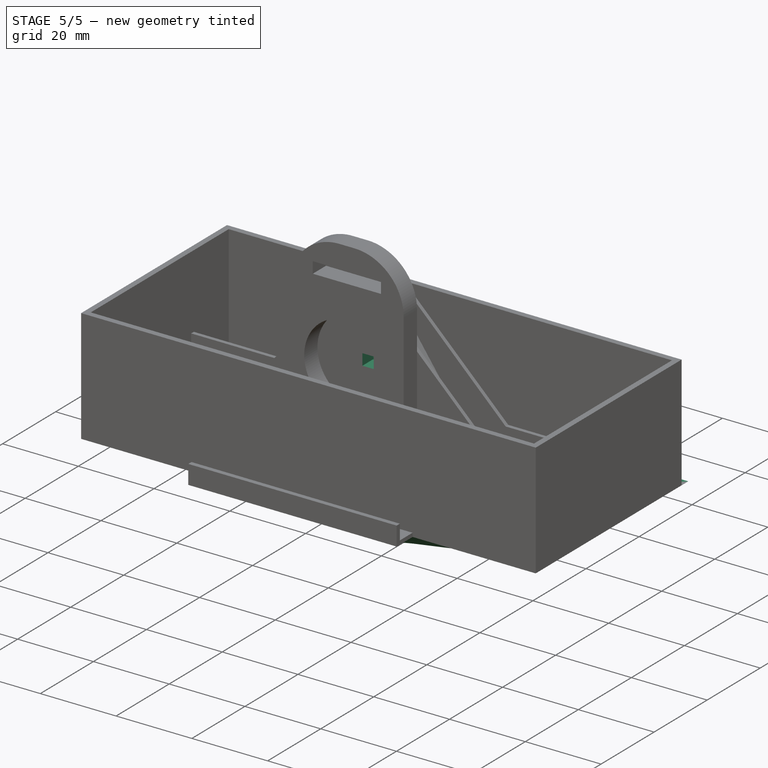
[diagram: stage 5 of 5 — iso view after this stage's code; geometry added in this stage tinted green]
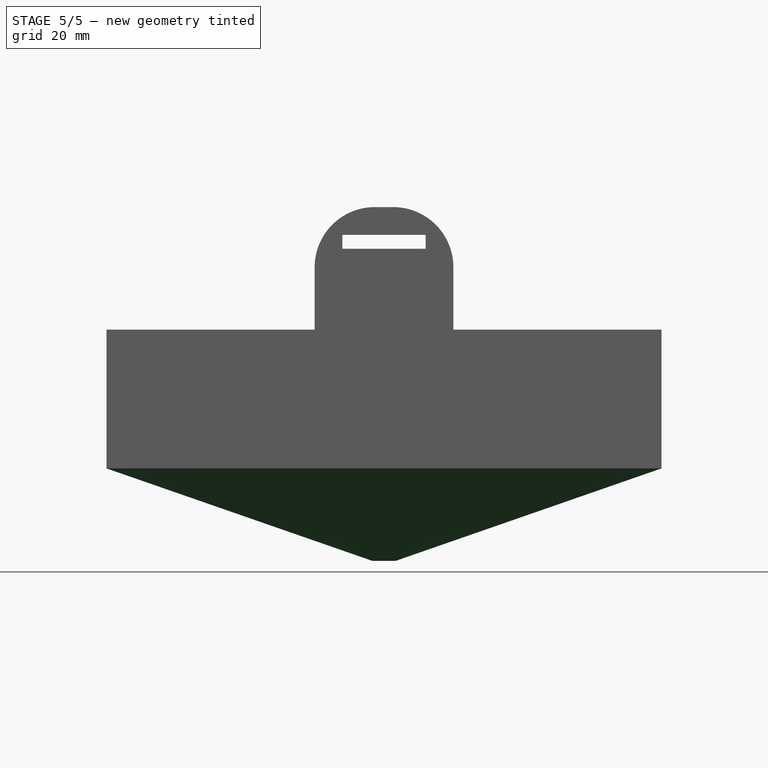
[diagram: stage 5 of 5 — front view after this stage's code; geometry added in this stage tinted green]
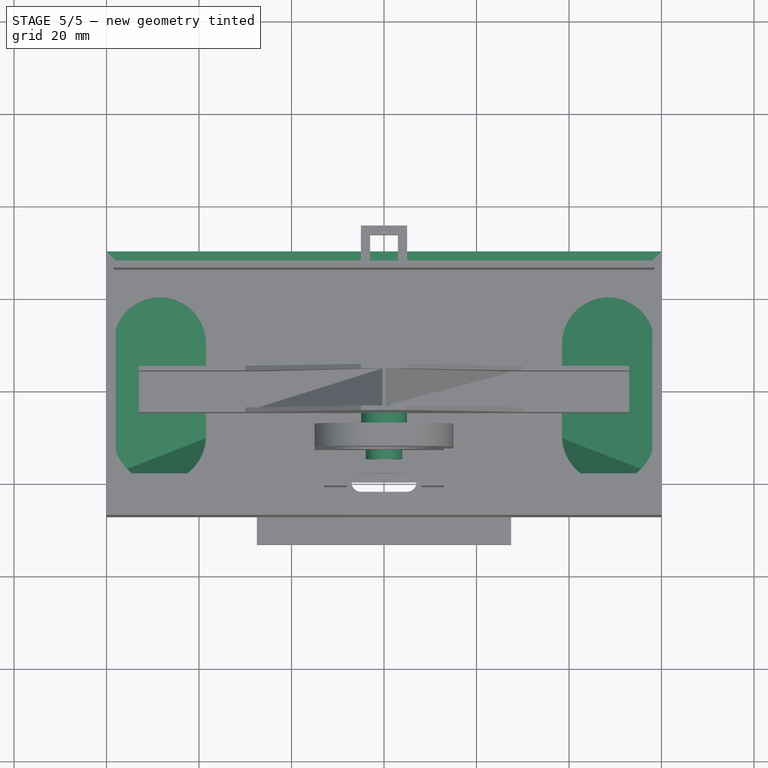
[diagram: stage 5 of 5 — top view after this stage's code; geometry added in this stage tinted green]
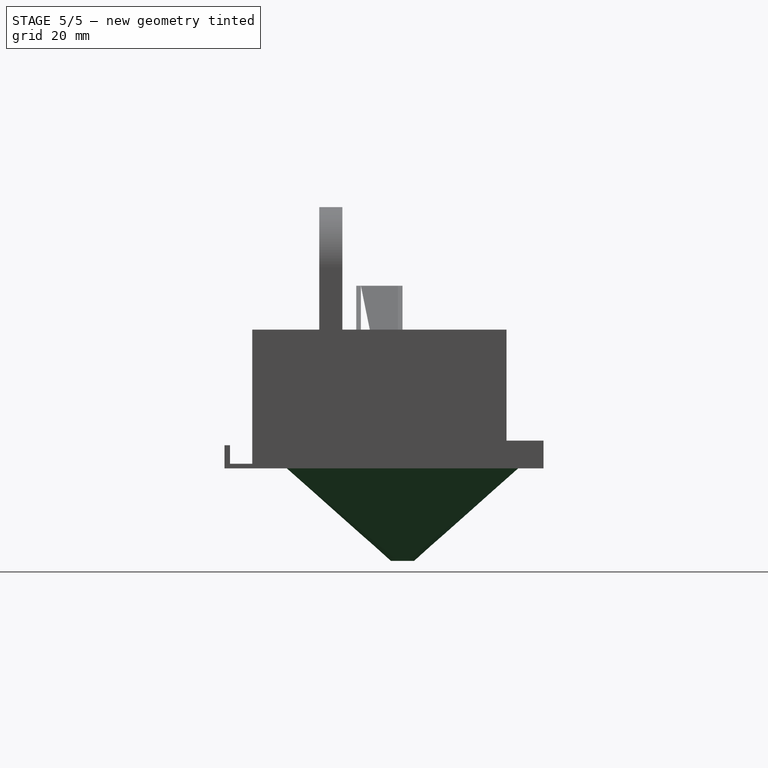
[diagram: stage 5 of 5 — right view after this stage's code; geometry added in this stage tinted green]
FEATURE [Sketcher::SketchObject] Sketch005
  FullyConstrained = true
  MapMode = 5
  Support = -> [XY_Plane001]
  sketch-geometry (4):
    g0: LineSegment StartX=-60 StartY=30 StartZ=0 EndX=60 EndY=30 EndZ=0
    g1: LineSegment StartX=60 StartY=30 StartZ=0 EndX=60 EndY=-20 EndZ=0
    g2: LineSegment StartX=60 StartY=-20 StartZ=0 EndX=-60 EndY=-20 EndZ=0
    g3: LineSegment StartX=-60 StartY=-20 StartZ=0 EndX=-60 EndY=30 EndZ=0
  constraints (11):
    c: Coincident(g0,g1)
    c: Coincident(g1,g2)
    c: Coincident(g2,g3)
    c: Coincident(g3,g0)
    c: Horizontal(g2)
    c: Vertical(g1)
    c: Vertical(g3)
    c: Symmetric(g0,g0,g-2)
    c: Distance(g0) = 120
    c: Distance(g3) = 50
    c: DistanceY(g2,g-1) = 20
FEATURE [PartDesign::Plane] DatumPlane
  AttachmentOffset = pos=(0,0,-20) rot=(0,0,1;0rad)
  Length = 60
  MapMode = 2
  Placement = pos=(0,0,-20) rot=(0,0,1;0rad)
  ResizeMode = 0
  Support = -> [Sketch005]
  Width = 60
FEATURE [Sketcher::SketchObject] Sketch006
  FullyConstrained = true
  MapMode = 5
  Placement = pos=(0,0,-20) rot=(0,0,1;0rad)
  Support = -> [DatumPlane]
  sketch-geometry (1):
    g0: Circle CenterX=0 CenterY=5 CenterZ=0 NormalX=0 NormalY=0 NormalZ=1 AngleXU=0 Radius=2.5
  constraints (3):
    c: Diameter(g0) = 5
    c: PointOnObject(g0,g-2)
    c: DistanceY(g-1,g0) = 5
FEATURE [PartDesign::AdditiveLoft] AdditiveLoft
  Closed = false
  Placement = pos=(0,0,-20) rot=(0,0,1;0rad)
  Profile = -> Sketch006
  Ruled = false
  Sections = -> [Sketch005]
FEATURE [Sketcher::SketchObject] Sketch007
  ExternalGeometry = -> [AdditiveLoft]
  FullyConstrained = true
  MapMode = 5
  Support = -> [AdditiveLoft]
  sketch-geometry (4):
    g0: LineSegment StartX=-58 StartY=28 StartZ=0 EndX=58 EndY=28 EndZ=0
    g1: LineSegment StartX=58 StartY=28 StartZ=0 EndX=58 EndY=-18 EndZ=0
    g2: LineSegment StartX=58 StartY=-18 StartZ=0 EndX=-58 EndY=-18 EndZ=0
    g3: LineSegment StartX=-58 StartY=-18 StartZ=0 EndX=-58 EndY=28 EndZ=0
  constraints (12):
    c: Coincident(g0,g1)
    c: Coincident(g1,g2)
    c: Coincident(g2,g3)
    c: Coincident(g3,g0)
    c: Horizontal(g0)
    c: Horizontal(g2)
    c: Vertical(g1)
    c: Vertical(g3)
    c: DistanceX(g-3,g0) = 2
    c: DistanceY(g0,g-3) = 2
    c: DistanceY(g-4,g2) = 2
    c: DistanceX(g1,g-4) = 2
FEATURE [Sketcher::SketchObject] Sketch008
  ExternalGeometry = -> [Sketch006]
  FullyConstrained = true
  MapMode = 5
  Placement = pos=(0,0,-20) rot=(0,0,1;0rad)
  Support = -> [DatumPlane]
  sketch-geometry (1):
    g0: Circle CenterX=0 CenterY=5 CenterZ=0 NormalX=0 NormalY=0 NormalZ=1 AngleXU=0 Radius=1.5
  constraints (2):
    c: Coincident(g0,g-3)
    c: Diameter(g0) = 3
FEATURE [PartDesign::SubtractiveLoft] SubtractiveLoft
  BaseFeature = -> AdditiveLoft
  Closed = false
  Placement = pos=(0,0,-20) rot=(0,0,1;0rad)
  Profile = -> Sketch008
  Ruled = false
  Sections = -> [Sketch007]
FEATURE [Sketcher::SketchObject] Sketch022
  FullyConstrained = true
  MapMode = 5
  Placement = pos=(0,-5,0) rot=(1,0,0;1.5708rad)
  Support = -> [Pocket005]
  sketch-geometry (1):
    g0: Circle CenterX=0 CenterY=3.95 CenterZ=0 NormalX=0 NormalY=0 NormalZ=1 AngleXU=0 Radius=3.95
  constraints (3):
    c: PointOnObject(g0,g-2)
    c: Diameter(g0) = 7.9
    c: PointOnObject(g-1,g0)
FEATURE [PartDesign::Pad] Pad007  label="Achse"
  BaseFeature = -> Pocket005
  Direction = (1,1,1)
  Length = 10
  Length2 = 100
  Profile = -> Sketch022
  Type = 0
FEATURE [Sketcher::SketchObject] Sketch023
  ExternalGeometry = -> [Pad007]
  FullyConstrained = true
  MapMode = 5
  Placement = pos=(0,-5,0) rot=(1,0,0;1.5708rad)
  Support = -> [Pad007]
  sketch-geometry (3):
    g0: ArcOfCircle CenterX=0 CenterY=3.95 CenterZ=0 NormalX=0 NormalY=0 NormalZ=1 AngleXU=0 Radius=4.96009 StartAngle=5.36194 EndAngle=10.346
    g1: LineSegment StartX=0 StartY=2.2e-15 StartZ=0 EndX=3 EndY=2.74878e-11 EndZ=0
    g2: LineSegment StartX=0 StartY=2.2e-15 StartZ=0 EndX=-3 EndY=4.03331e-11 EndZ=0
  constraints (8):
    c: Coincident(g0,g-3)
    c: PointOnObject(g0,g-5)
    c: PointOnObject(g0,g-4)
    c: Coincident(g1,g-1)
    c: Coincident(g1,g0)
    c: Coincident(g2,g1)
    c: Coincident(g2,g0)
    c: DistanceX(g1,g1) = 3
FEATURE [PartDesign::Pad] Pad008  label="Achsenpodest"
  BaseFeature = -> Pad007
  Direction = (1,1,1)
  Length = 3
  Length2 = 100
  Profile = -> Sketch023
  Type = 0
FEATURE [Sketcher::SketchObject] Sketch024
  ExternalGeometry = -> [Pad008]
  FullyConstrained = true
  MapMode = 5
  Placement = pos=(0,-5,0) rot=(1,0,0;1.5708rad)
  Support = -> [Pad008]
  sketch-geometry (4):
    g0: LineSegment StartX=-1.5 StartY=27.5 StartZ=0 EndX=1.5 EndY=27.5 EndZ=0
    g1: LineSegment StartX=1.5 StartY=27.5 StartZ=0 EndX=1.5 EndY=24.5 EndZ=0
    g2: LineSegment StartX=1.5 StartY=24.5 StartZ=0 EndX=-1.5 EndY=24.5 EndZ=0
    g3: LineSegment StartX=-1.5 StartY=24.5 StartZ=0 EndX=-1.5 EndY=27.5 EndZ=0
  constraints (11):
    c: Coincident(g0,g1)
    c: Coincident(g1,g2)
    c: Coincident(g2,g3)
    c: Coincident(g3,g0)
    c: Horizontal(g2)
    c: Vertical(g1)
    c: Vertical(g3)
    c: Distance(g0) = 3
    c: Equal(g0,g1)
    c: Symmetric(g0,g0,g-2)
    c: DistanceY(g0,g-3) = 12
FEATURE [PartDesign::Pocket] Pocket006  label="Magnetloch"
  BaseFeature = -> Pad008
  Length = 4
  Length2 = 100
  Profile = -> Sketch024
  Type = 0
FEATURE [Sketcher::SketchObject] Sketch025
  ExternalGeometry = -> [Pocket006]
  FullyConstrained = true
  MapMode = 5
  Placement = pos=(0,-15,3.9e-15) rot=(1,0,0;1.5708rad)
  Support = -> [Pocket006]
  sketch-geometry (1):
    g0: Circle CenterX=0 CenterY=3.95 CenterZ=0 NormalX=0 NormalY=0 NormalZ=1 AngleXU=0 Radius=1.5
  constraints (2):
    c: Coincident(g0,g-3)
    c: Diameter(g0) = 3
FEATURE [PartDesign::Pocket] Pocket007  label="Schraubloch Achse"
  BaseFeature = -> Pocket006
  Length = 5
  Length2 = 100
  Profile = -> Sketch025
  Type = 0
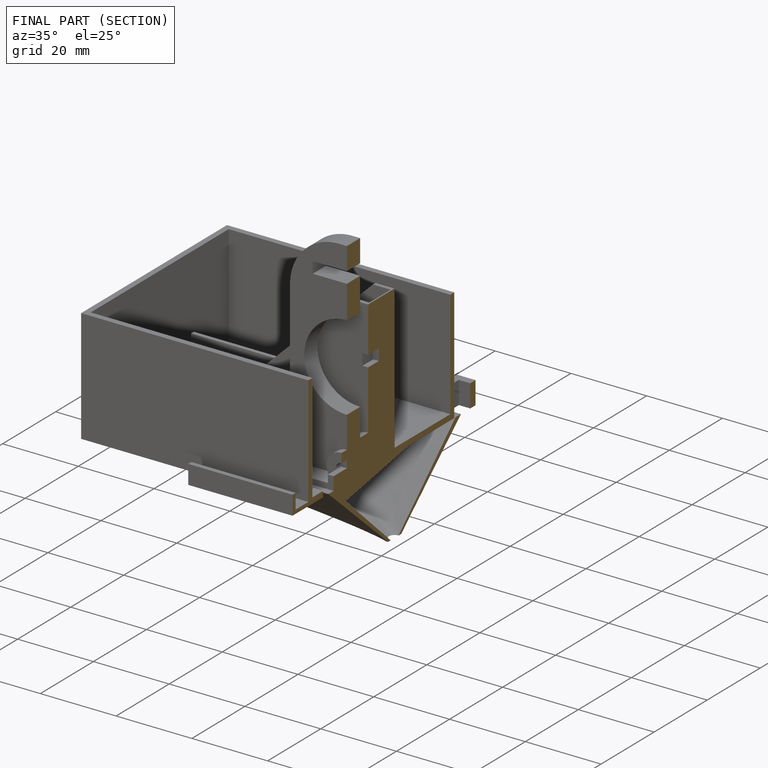
[diagram: finished part — half-section view (interior)]
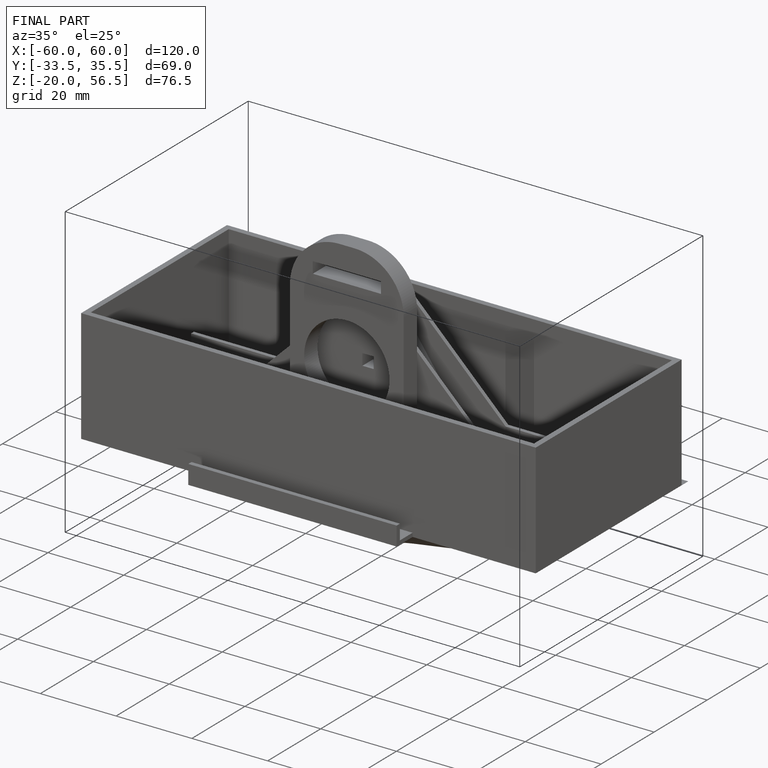
[diagram: finished part — iso view with bounding-box wireframe]
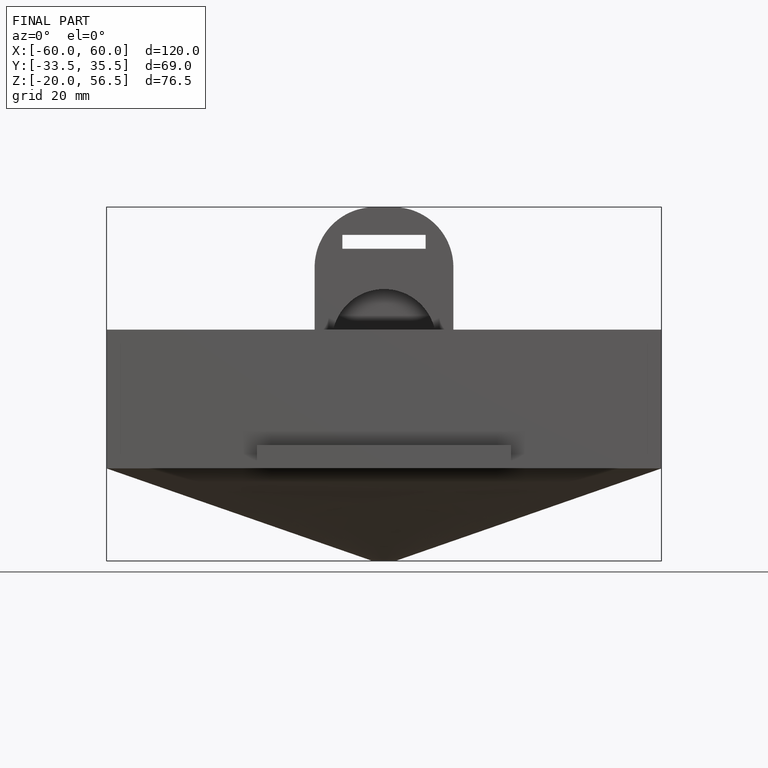
[diagram: finished part — front view with bounding-box wireframe]
